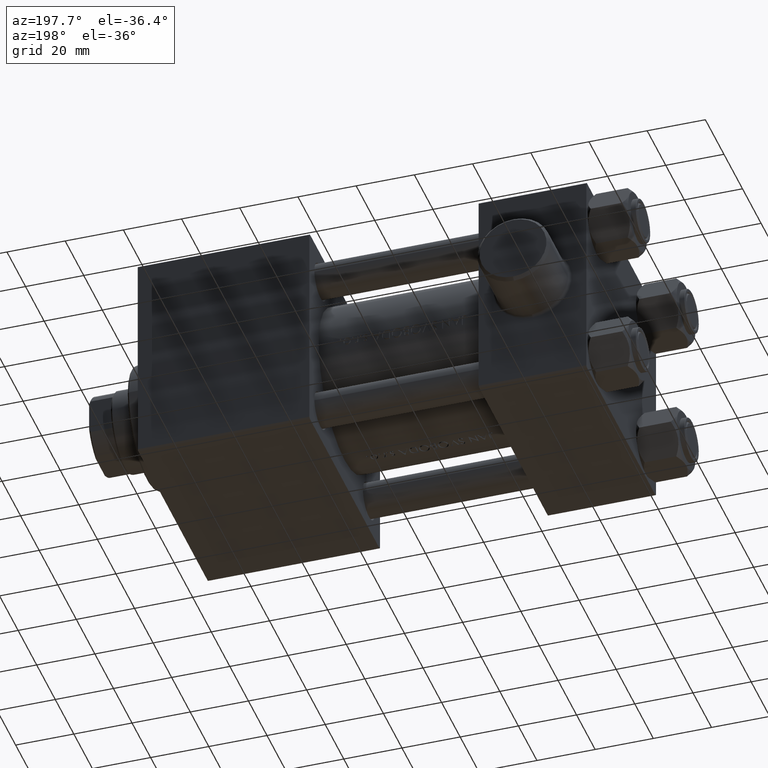
[diagram: clean part render]
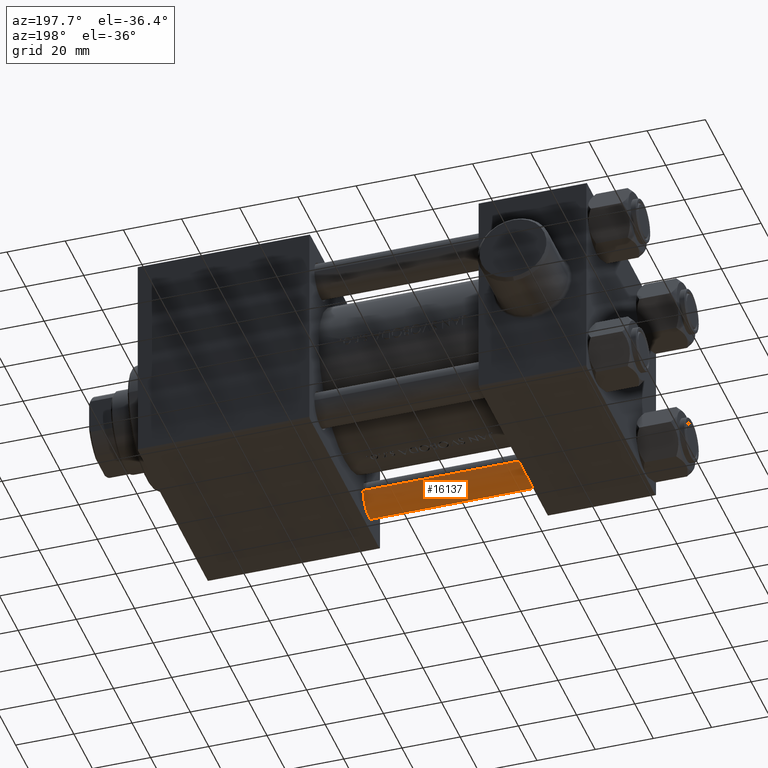
[diagram: same view with one face highlighted and labeled with its STEP entity id]
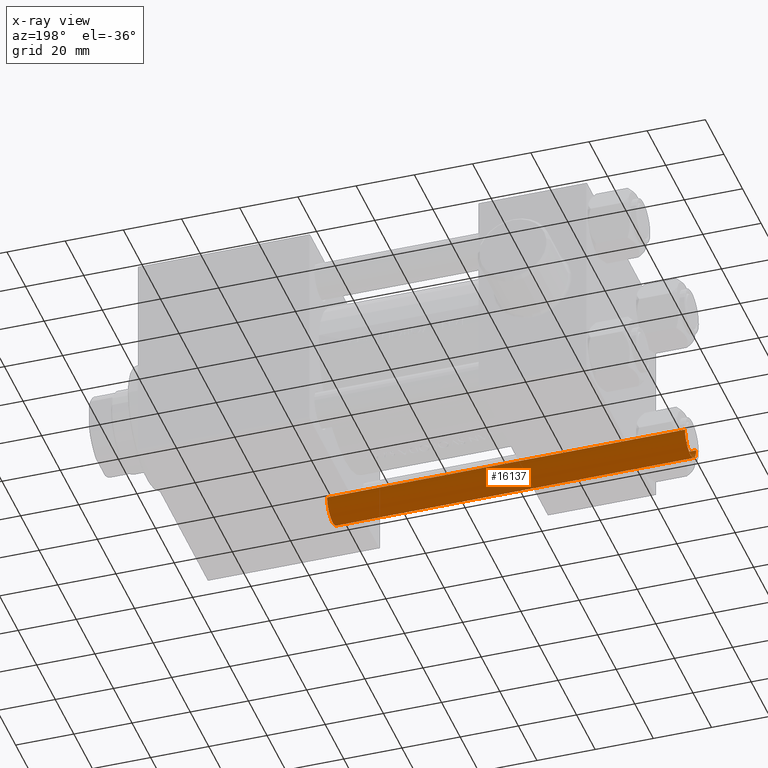
[diagram: x-ray of the same camera — body ghosted, the highlighted face saturated]
A machine part, auxiliary view. The second image highlights one B-rep face of the part: STEP entity #16137.
The next image is the same camera in x-ray: the body ghosted, the highlighted face saturated — about 0% of this face is hidden behind the body in this view.
In plain terms, the highlighted cylindrical surface (edge-blend (fillet) strip) has radius 6 mm, axis along (-1, 0, 0).
Its self-contained STEP definition (entity closure, byte-faithful):
#988 = CIRCLE ( 'NONE', #16784, 6.000000000000000888 ) ;
#2291 = CARTESIAN_POINT ( 'NONE',  ( -6.000000000000000888, 0.000000000000000000, 124.0000000000000000 ) ) ;
#2965 = VERTEX_POINT ( 'NONE', #46125 ) ;
#3961 = DIRECTION ( 'NONE',  ( -0.000000000000000000, -0.000000000000000000, 1.000000000000000000 ) ) ;
#4291 = EDGE_CURVE ( 'NONE', #8484, #40588, #8380, .T. ) ;
#5915 = CIRCLE ( 'NONE', #39559, 6.000000000000000888 ) ;
#6671 = ORIENTED_EDGE ( 'NONE', *, *, #18905, .T. ) ;
#6709 = VECTOR ( 'NONE', #37869, 1000.000000000000000 ) ;
#7258 = CARTESIAN_POINT ( 'NONE',  ( -6.000000000000000888, 0.000000000000000000, 0.4999999999999865663 ) ) ;
#7747 = ORIENTED_EDGE ( 'NONE', *, *, #4291, .T. ) ;
#8380 = LINE ( 'NONE', #2291, #6709 ) ;
#8484 = VERTEX_POINT ( 'NONE', #22389 ) ;
#9242 = CARTESIAN_POINT ( 'NONE',  ( 6.000000000000000888, 7.347880794884120722E-16, 0.4999999999999865663 ) ) ;
#10204 = VECTOR ( 'NONE', #35236, 1000.000000000000000 ) ;
#10927 = DIRECTION ( 'NONE',  ( -0.000000000000000000, -0.000000000000000000, -1.000000000000000000 ) ) ;
#11776 = EDGE_CURVE ( 'NONE', #2965, #34645, #13936, .T. ) ;
#13936 = LINE ( 'NONE', #17202, #10204 ) ;
#14793 = AXIS2_PLACEMENT_3D ( 'NONE', #28715, #10927, #32218 ) ;
#15131 = CYLINDRICAL_SURFACE ( 'NONE', #14793, 6.000000000000000888 ) ;
#16137 = ADVANCED_FACE ( 'NONE', ( #25891 ), #15131, .T. ) ;
#16716 = CARTESIAN_POINT ( 'NONE',  ( 0.000000000000000000, 0.000000000000000000, 123.5000000000000426 ) ) ;
#16784 = AXIS2_PLACEMENT_3D ( 'NONE', #16716, #23530, #31227 ) ;
#17202 = CARTESIAN_POINT ( 'NONE',  ( 6.000000000000000888, 7.347880794884120722E-16, 124.0000000000000000 ) ) ;
#18702 = CARTESIAN_POINT ( 'NONE',  ( 0.000000000000000000, 0.000000000000000000, 0.4999999999999865663 ) ) ;
#18905 = EDGE_CURVE ( 'NONE', #40588, #34645, #5915, .T. ) ;
#19512 = EDGE_LOOP ( 'NONE', ( #45826, #37399, #7747, #6671 ) ) ;
#22389 = CARTESIAN_POINT ( 'NONE',  ( -6.000000000000000888, 0.000000000000000000, 123.5000000000000426 ) ) ;
#23530 = DIRECTION ( 'NONE',  ( 0.000000000000000000, 0.000000000000000000, -1.000000000000000000 ) ) ;
#25891 = FACE_OUTER_BOUND ( 'NONE', #19512, .T. ) ;
#28715 = CARTESIAN_POINT ( 'NONE',  ( 0.000000000000000000, 0.000000000000000000, 124.0000000000000000 ) ) ;
#31227 = DIRECTION ( 'NONE',  ( 1.000000000000000000, 0.000000000000000000, 0.000000000000000000 ) ) ;
#32218 = DIRECTION ( 'NONE',  ( -1.000000000000000000, 0.000000000000000000, 0.000000000000000000 ) ) ;
#32510 = DIRECTION ( 'NONE',  ( 1.000000000000000000, 0.000000000000000000, 0.000000000000000000 ) ) ;
#34645 = VERTEX_POINT ( 'NONE', #9242 ) ;
#35236 = DIRECTION ( 'NONE',  ( -0.000000000000000000, -0.000000000000000000, -1.000000000000000000 ) ) ;
#37399 = ORIENTED_EDGE ( 'NONE', *, *, #38041, .T. ) ;
#37869 = DIRECTION ( 'NONE',  ( -0.000000000000000000, -0.000000000000000000, -1.000000000000000000 ) ) ;
#38041 = EDGE_CURVE ( 'NONE', #2965, #8484, #988, .T. ) ;
#39559 = AXIS2_PLACEMENT_3D ( 'NONE', #18702, #3961, #32510 ) ;
#40588 = VERTEX_POINT ( 'NONE', #7258 ) ;
#45826 = ORIENTED_EDGE ( 'NONE', *, *, #11776, .F. ) ;
#46125 = CARTESIAN_POINT ( 'NONE',  ( 6.000000000000000888, 7.347880794884120722E-16, 123.5000000000000426 ) ) ;